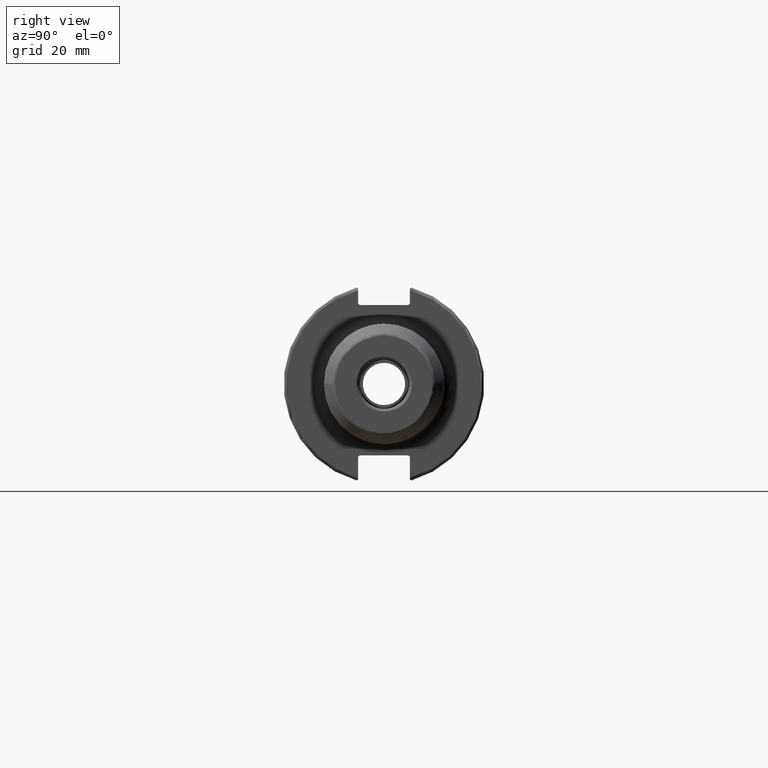
[diagram: clean part render]
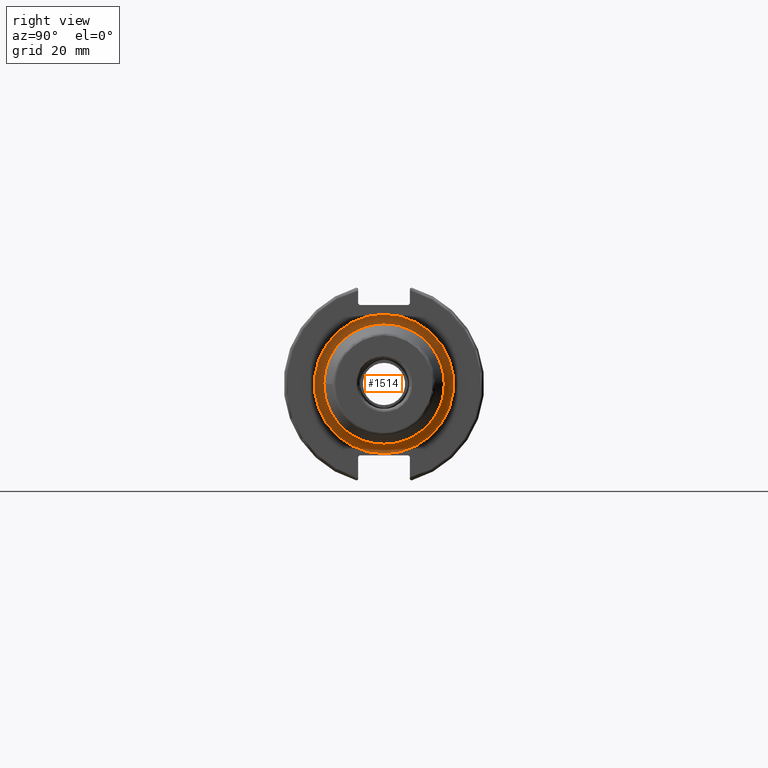
[diagram: same view with one face highlighted and labeled with its STEP entity id]
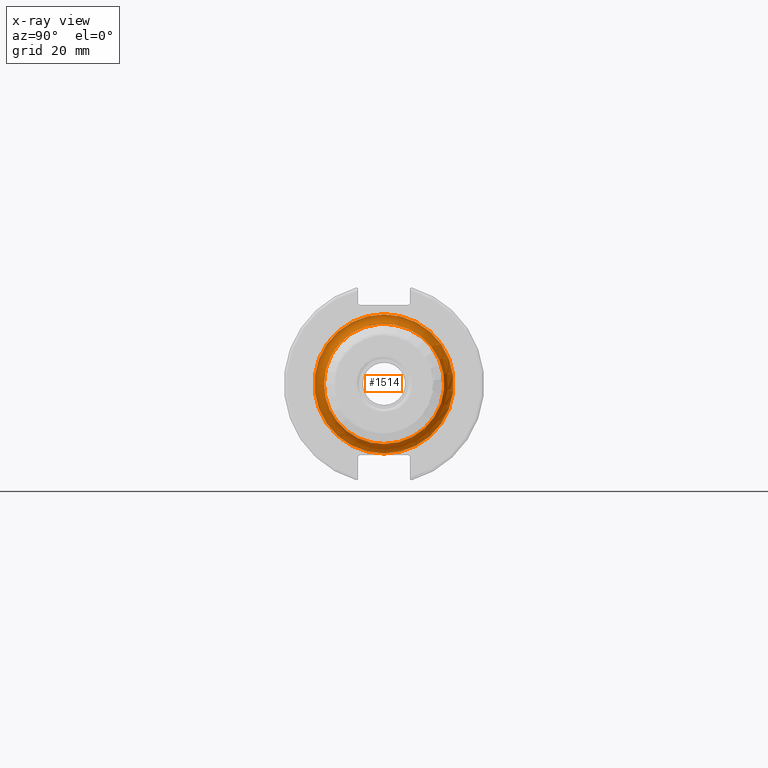
[diagram: x-ray of the same camera — body ghosted, the highlighted face saturated]
A machine part, right view. The second image highlights one B-rep face of the part: STEP entity #1514.
The next image is the same camera in x-ray: the body ghosted, the highlighted face saturated — about 2% of this face is hidden behind the body in this view.
In plain terms, the highlighted toroidal blend (fillet) surface has major radius 22.05 mm and minor (blend) radius 3 mm.
Its self-contained STEP definition (entity closure, byte-faithful):
#107=TOROIDAL_SURFACE('',#1641,22.05,3.);
#151=FACE_OUTER_BOUND('',#241,.T.);
#241=EDGE_LOOP('',(#1070,#1071,#1072,#1073,#1074));
#349=CIRCLE('',#1639,19.05);
#350=CIRCLE('',#1640,19.05);
#351=CIRCLE('',#1642,3.);
#352=CIRCLE('',#1643,22.05);
#644=VERTEX_POINT('',#2370);
#645=VERTEX_POINT('',#2372);
#646=VERTEX_POINT('',#2376);
#809=EDGE_CURVE('',#645,#644,#349,.T.);
#810=EDGE_CURVE('',#644,#645,#350,.T.);
#811=EDGE_CURVE('',#645,#646,#351,.T.);
#812=EDGE_CURVE('',#646,#646,#352,.T.);
#1070=ORIENTED_EDGE('',*,*,#810,.T.);
#1071=ORIENTED_EDGE('',*,*,#811,.T.);
#1072=ORIENTED_EDGE('',*,*,#812,.T.);
#1073=ORIENTED_EDGE('',*,*,#811,.F.);
#1074=ORIENTED_EDGE('',*,*,#809,.T.);
#1514=ADVANCED_FACE('',(#151),#107,.F.);
#1639=AXIS2_PLACEMENT_3D('',#2373,#1851,#1852);
#1640=AXIS2_PLACEMENT_3D('',#2374,#1853,#1854);
#1641=AXIS2_PLACEMENT_3D('',#2375,#1855,#1856);
#1642=AXIS2_PLACEMENT_3D('',#2377,#1857,#1858);
#1643=AXIS2_PLACEMENT_3D('',#2378,#1859,#1860);
#1851=DIRECTION('center_axis',(-1.,0.,0.));
#1852=DIRECTION('ref_axis',(0.,-1.,-1.22464679914735E-16));
#1853=DIRECTION('center_axis',(-1.,0.,0.));
#1854=DIRECTION('ref_axis',(0.,-1.,-1.22464679914735E-16));
#1855=DIRECTION('center_axis',(-1.,0.,0.));
#1856=DIRECTION('ref_axis',(0.,0.,1.));
#1857=DIRECTION('center_axis',(0.,-1.,1.22464679914735E-16));
#1858=DIRECTION('ref_axis',(0.,-1.22464679914735E-16,-1.));
#1859=DIRECTION('center_axis',(1.,0.,0.));
#1860=DIRECTION('ref_axis',(0.,-1.,-1.22464679914735E-16));
#2370=CARTESIAN_POINT('',(22.05,-19.05,-2.33295215237571E-15));
#2372=CARTESIAN_POINT('',(22.05,-2.33295215237571E-15,-19.05));
#2373=CARTESIAN_POINT('Origin',(22.05,0.,0.));
#2374=CARTESIAN_POINT('Origin',(22.05,0.,0.));
#2375=CARTESIAN_POINT('Origin',(22.05,0.,0.));
#2376=CARTESIAN_POINT('',(19.05,-2.70034619211991E-15,-22.05));
#2377=CARTESIAN_POINT('Origin',(22.05,-2.70034619211991E-15,-22.05));
#2378=CARTESIAN_POINT('Origin',(19.05,0.,0.));